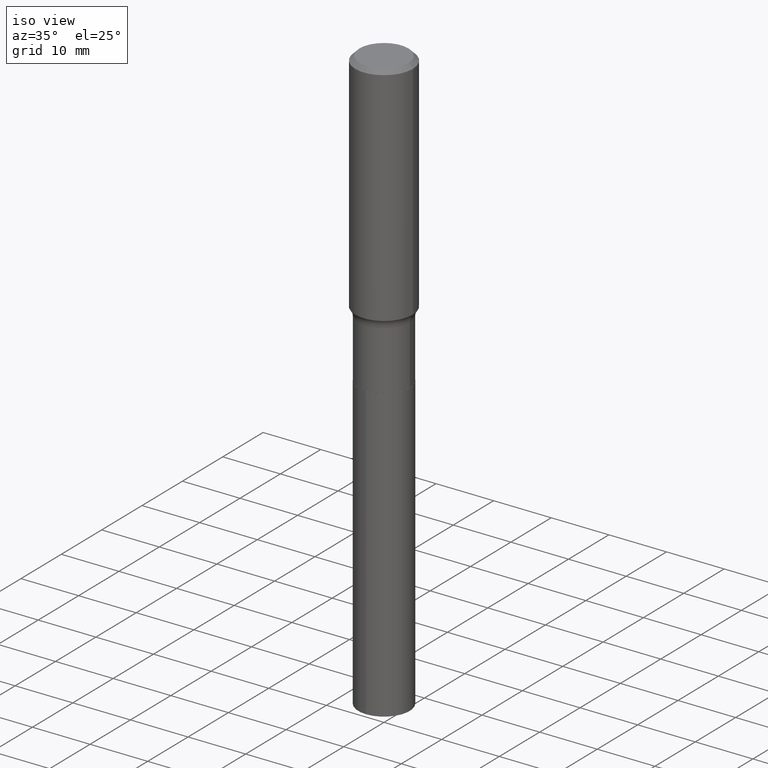
[diagram: clean part render]
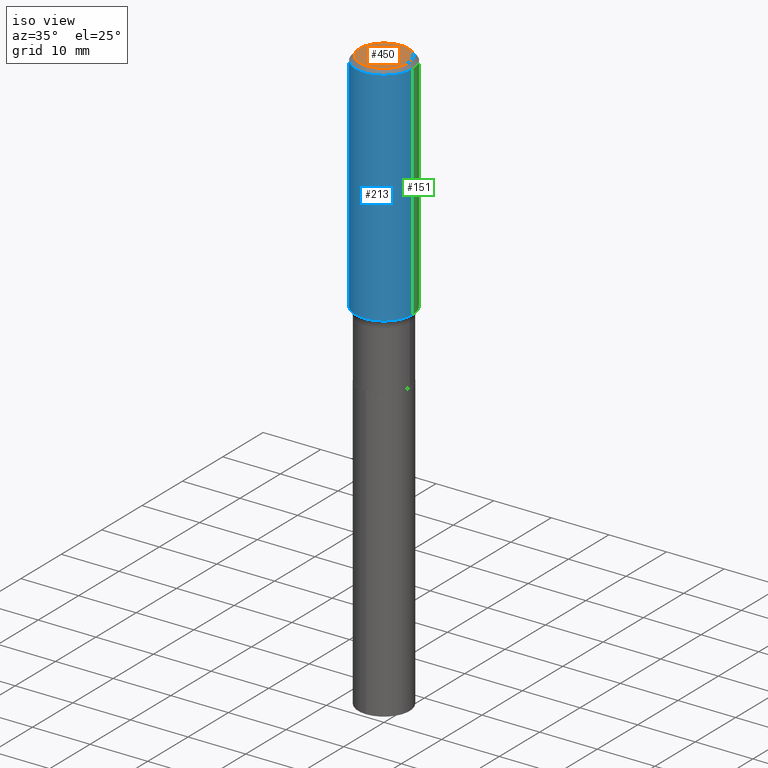
[diagram: same view with three faces highlighted in distinct colors, each labeled with its STEP entity id]
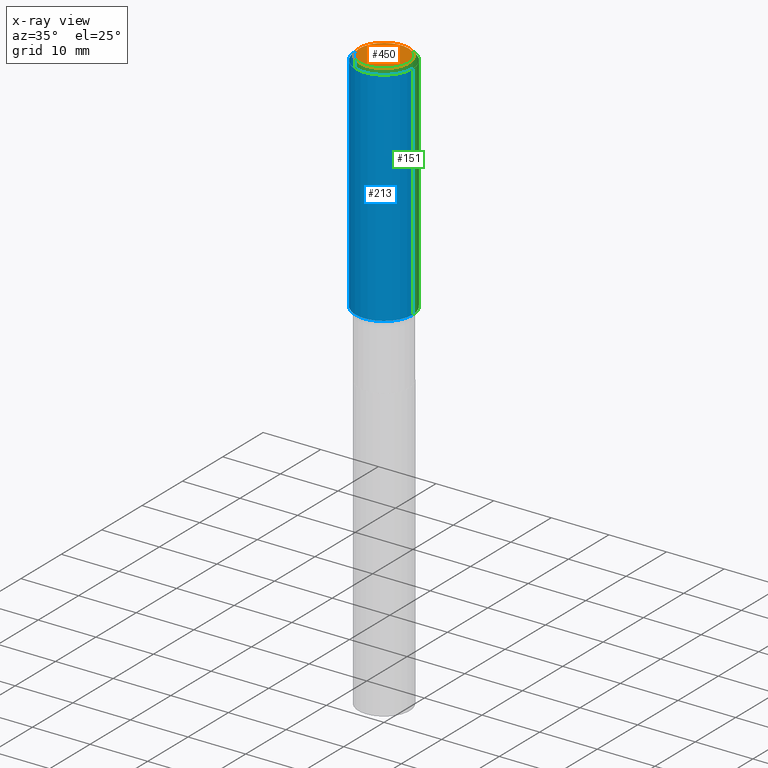
[diagram: x-ray of the same camera — body ghosted, the three highlighted faces saturated]
A machine part, iso view with three faces highlighted in distinct colors.
The next image is the same camera in x-ray (body ghosted, the three faces saturated) — at least one of them is partly hidden behind the body in this view.
Their STEP definitions:

[orange] entity #450 — the highlighted planar face has unit normal (0, -0, -1).
#3 = CARTESIAN_POINT ( 'NONE',  ( -1.001697619218021790E-46, 1.430158722866389718E-32, 4.096137381448108366E-18 ) ) ;
#47 = VERTEX_POINT ( 'NONE', #308 ) ;
#71 = DIRECTION ( 'NONE',  ( 2.438088387897960049E-29, -3.491481338843145188E-15, -1.000000000000000000 ) ) ;
#73 = CARTESIAN_POINT ( 'NONE',  ( -5.008488096090108951E-47, 7.150793614331948590E-33, 2.048068690724054183E-18 ) ) ;
#81 = CIRCLE ( 'NONE', #468, 0.1673224999999999851 ) ;
#107 = PLANE ( 'NONE',  #461 ) ;
#112 = ORIENTED_EDGE ( 'NONE', *, *, #414, .T. ) ;
#130 = EDGE_CURVE ( 'NONE', #421, #47, #278, .T. ) ;
#158 = ORIENTED_EDGE ( 'NONE', *, *, #130, .T. ) ;
#165 = CARTESIAN_POINT ( 'NONE',  ( -0.1673224999999999851, 1.219954130253505460E-15, 4.096137381439757534E-18 ) ) ;
#203 = EDGE_LOOP ( 'NONE', ( #158, #112 ) ) ;
#278 = CIRCLE ( 'NONE', #362, 0.1673224999999999851 ) ;
#286 = DIRECTION ( 'NONE',  ( 1.000000000000000000, -6.982962677686267499E-15, 4.876294436782262290E-29 ) ) ;
#308 = CARTESIAN_POINT ( 'NONE',  ( 0.1673224999999999851, -1.300749711163072594E-15, 4.096137381456741925E-18 ) ) ;
#313 = FACE_OUTER_BOUND ( 'NONE', #203, .T. ) ;
#334 = DIRECTION ( 'NONE',  ( 1.000000000000000000, -6.982962677686267499E-15, 4.876294436782262290E-29 ) ) ;
#349 = CARTESIAN_POINT ( 'NONE',  ( -1.001697619218021790E-46, 1.430158722866389718E-32, 4.096137381448108366E-18 ) ) ;
#362 = AXIS2_PLACEMENT_3D ( 'NONE', #3, #490, #334 ) ;
#382 = DIRECTION ( 'NONE',  ( -1.000000000000000000, 6.982962677686265922E-15, -4.876176775795935793E-29 ) ) ;
#414 = EDGE_CURVE ( 'NONE', #47, #421, #81, .T. ) ;
#421 = VERTEX_POINT ( 'NONE', #165 ) ;
#427 = DIRECTION ( 'NONE',  ( -2.445468806185136597E-29, 3.491481338843145583E-15, 1.000000000000000000 ) ) ;
#450 = ADVANCED_FACE ( 'NONE', ( #313 ), #107, .F. ) ;
#461 = AXIS2_PLACEMENT_3D ( 'NONE', #73, #71, #382 ) ;
#468 = AXIS2_PLACEMENT_3D ( 'NONE', #349, #427, #286 ) ;
#490 = DIRECTION ( 'NONE',  ( -2.445468806185136597E-29, 3.491481338843145583E-15, 1.000000000000000000 ) ) ;

[blue] entity #213 — the highlighted cylindrical surface (edge-blend (fillet) strip) has radius 5 mm, axis along (-0, 0, 1).
#8 = EDGE_LOOP ( 'NONE', ( #85, #20, #34, #431 ) ) ;
#13 = CARTESIAN_POINT ( 'NONE',  ( -0.1968500000000001915, -4.002505982180359837E-15, -1.546967843543948229 ) ) ;
#20 = ORIENTED_EDGE ( 'NONE', *, *, #371, .T. ) ;
#24 = CARTESIAN_POINT ( 'NONE',  ( 0.1968500000000000527, -1.477690918335233688E-15, -0.02952750000000022024 ) ) ;
#28 = VERTEX_POINT ( 'NONE', #194 ) ;
#34 = ORIENTED_EDGE ( 'NONE', *, *, #475, .T. ) ;
#36 = LINE ( 'NONE', #322, #38 ) ;
#38 = VECTOR ( 'NONE', #397, 39.37007874015748143 ) ;
#45 = LINE ( 'NONE', #314, #227 ) ;
#53 = VERTEX_POINT ( 'NONE', #13 ) ;
#66 = DIRECTION ( 'NONE',  ( -2.445468806185136597E-29, 3.491481338843145583E-15, 1.000000000000000000 ) ) ;
#85 = ORIENTED_EDGE ( 'NONE', *, *, #420, .F. ) ;
#108 = CARTESIAN_POINT ( 'NONE',  ( 7.220858017463216492E-31, -1.030947152326917595E-16, -0.02952750000000022024 ) ) ;
#118 = EDGE_CURVE ( 'NONE', #28, #482, #417, .T. ) ;
#134 = DIRECTION ( 'NONE',  ( -2.445468806185136597E-29, 3.491481338843145583E-15, 1.000000000000000000 ) ) ;
#168 = FACE_OUTER_BOUND ( 'NONE', #8, .T. ) ;
#194 = CARTESIAN_POINT ( 'NONE',  ( -0.1968500000000000527, -1.353448661034646867E-15, -0.02952750000000022024 ) ) ;
#213 = ADVANCED_FACE ( 'NONE', ( #168 ), #485, .T. ) ;
#222 = DIRECTION ( 'NONE',  ( 1.000000000000000000, -6.982962677686266711E-15, 4.876176775795935793E-29 ) ) ;
#227 = VECTOR ( 'NONE', #364, 39.37007874015748143 ) ;
#289 = CIRCLE ( 'NONE', #301, 0.1968500000000001915 ) ;
#292 = DIRECTION ( 'NONE',  ( 1.000000000000000000, -6.982962677686266711E-15, 0.000000000000000000 ) ) ;
#300 = AXIS2_PLACEMENT_3D ( 'NONE', #108, #422, #384 ) ;
#301 = AXIS2_PLACEMENT_3D ( 'NONE', #487, #134, #292 ) ;
#303 = VERTEX_POINT ( 'NONE', #335 ) ;
#314 = CARTESIAN_POINT ( 'NONE',  ( -0.1968500000000001082, 1.398703375343757985E-15, -9.682923725166787881E-30 ) ) ;
#322 = CARTESIAN_POINT ( 'NONE',  ( 0.1968500000000001082, -1.374596203102542397E-15, 9.598753983154305062E-30 ) ) ;
#331 = CARTESIAN_POINT ( 'NONE',  ( 0.000000000000000000, 0.000000000000000000, 0.000000000000000000 ) ) ;
#335 = CARTESIAN_POINT ( 'NONE',  ( 0.1968500000000001915, -6.775805560626661599E-15, -1.546967843543948229 ) ) ;
#364 = DIRECTION ( 'NONE',  ( -2.445468806185136877E-29, 3.491481338843145188E-15, 1.000000000000000000 ) ) ;
#371 = EDGE_CURVE ( 'NONE', #53, #303, #289, .T. ) ;
#384 = DIRECTION ( 'NONE',  ( 1.000000000000000000, -6.982962677686266711E-15, 0.000000000000000000 ) ) ;
#397 = DIRECTION ( 'NONE',  ( -2.445468806185136877E-29, 3.491481338843145188E-15, 1.000000000000000000 ) ) ;
#417 = CIRCLE ( 'NONE', #300, 0.1968500000000000527 ) ;
#420 = EDGE_CURVE ( 'NONE', #53, #28, #45, .T. ) ;
#422 = DIRECTION ( 'NONE',  ( -2.445468806185136597E-29, 3.491481338843145583E-15, 1.000000000000000000 ) ) ;
#423 = AXIS2_PLACEMENT_3D ( 'NONE', #331, #66, #222 ) ;
#431 = ORIENTED_EDGE ( 'NONE', *, *, #118, .F. ) ;
#475 = EDGE_CURVE ( 'NONE', #303, #482, #36, .T. ) ;
#482 = VERTEX_POINT ( 'NONE', #24 ) ;
#485 = CYLINDRICAL_SURFACE ( 'NONE', #423, 0.1968500000000001082 ) ;
#487 = CARTESIAN_POINT ( 'NONE',  ( 3.783061605558214403E-29, -5.401209357524118413E-15, -1.546967843543948229 ) ) ;

[green] entity #151 — the highlighted cylindrical surface (edge-blend (fillet) strip) has radius 5 mm, axis along (-0, 0, 1).
#13 = CARTESIAN_POINT ( 'NONE',  ( -0.1968500000000001915, -4.002505982180359837E-15, -1.546967843543948229 ) ) ;
#24 = CARTESIAN_POINT ( 'NONE',  ( 0.1968500000000000527, -1.477690918335233688E-15, -0.02952750000000022024 ) ) ;
#28 = VERTEX_POINT ( 'NONE', #194 ) ;
#36 = LINE ( 'NONE', #322, #38 ) ;
#38 = VECTOR ( 'NONE', #397, 39.37007874015748143 ) ;
#44 = EDGE_LOOP ( 'NONE', ( #419, #306, #263, #323 ) ) ;
#45 = LINE ( 'NONE', #314, #227 ) ;
#49 = CIRCLE ( 'NONE', #74, 0.1968500000000000527 ) ;
#53 = VERTEX_POINT ( 'NONE', #13 ) ;
#74 = AXIS2_PLACEMENT_3D ( 'NONE', #358, #159, #320 ) ;
#103 = CIRCLE ( 'NONE', #210, 0.1968500000000001915 ) ;
#115 = DIRECTION ( 'NONE',  ( 1.000000000000000000, -6.982962677686266711E-15, 0.000000000000000000 ) ) ;
#123 = FACE_OUTER_BOUND ( 'NONE', #44, .T. ) ;
#150 = CARTESIAN_POINT ( 'NONE',  ( 3.783061605558214403E-29, -5.401209357524118413E-15, -1.546967843543948229 ) ) ;
#151 = ADVANCED_FACE ( 'NONE', ( #123 ), #356, .T. ) ;
#159 = DIRECTION ( 'NONE',  ( -2.445468806185136597E-29, 3.491481338843145583E-15, 1.000000000000000000 ) ) ;
#169 = EDGE_CURVE ( 'NONE', #482, #28, #49, .T. ) ;
#194 = CARTESIAN_POINT ( 'NONE',  ( -0.1968500000000000527, -1.353448661034646867E-15, -0.02952750000000022024 ) ) ;
#204 = DIRECTION ( 'NONE',  ( 1.000000000000000000, -6.982962677686266711E-15, 4.876176775795935793E-29 ) ) ;
#210 = AXIS2_PLACEMENT_3D ( 'NONE', #150, #310, #115 ) ;
#227 = VECTOR ( 'NONE', #364, 39.37007874015748143 ) ;
#263 = ORIENTED_EDGE ( 'NONE', *, *, #169, .F. ) ;
#279 = CARTESIAN_POINT ( 'NONE',  ( 0.000000000000000000, 0.000000000000000000, 0.000000000000000000 ) ) ;
#303 = VERTEX_POINT ( 'NONE', #335 ) ;
#306 = ORIENTED_EDGE ( 'NONE', *, *, #420, .T. ) ;
#310 = DIRECTION ( 'NONE',  ( -2.445468806185136597E-29, 3.491481338843145583E-15, 1.000000000000000000 ) ) ;
#314 = CARTESIAN_POINT ( 'NONE',  ( -0.1968500000000001082, 1.398703375343757985E-15, -9.682923725166787881E-30 ) ) ;
#320 = DIRECTION ( 'NONE',  ( 1.000000000000000000, -6.982962677686266711E-15, 0.000000000000000000 ) ) ;
#322 = CARTESIAN_POINT ( 'NONE',  ( 0.1968500000000001082, -1.374596203102542397E-15, 9.598753983154305062E-30 ) ) ;
#323 = ORIENTED_EDGE ( 'NONE', *, *, #475, .F. ) ;
#335 = CARTESIAN_POINT ( 'NONE',  ( 0.1968500000000001915, -6.775805560626661599E-15, -1.546967843543948229 ) ) ;
#356 = CYLINDRICAL_SURFACE ( 'NONE', #381, 0.1968500000000001082 ) ;
#358 = CARTESIAN_POINT ( 'NONE',  ( 7.220858017463216492E-31, -1.030947152326917595E-16, -0.02952750000000022024 ) ) ;
#364 = DIRECTION ( 'NONE',  ( -2.445468806185136877E-29, 3.491481338843145188E-15, 1.000000000000000000 ) ) ;
#381 = AXIS2_PLACEMENT_3D ( 'NONE', #279, #396, #204 ) ;
#396 = DIRECTION ( 'NONE',  ( -2.445468806185136597E-29, 3.491481338843145583E-15, 1.000000000000000000 ) ) ;
#397 = DIRECTION ( 'NONE',  ( -2.445468806185136877E-29, 3.491481338843145188E-15, 1.000000000000000000 ) ) ;
#419 = ORIENTED_EDGE ( 'NONE', *, *, #447, .T. ) ;
#420 = EDGE_CURVE ( 'NONE', #53, #28, #45, .T. ) ;
#447 = EDGE_CURVE ( 'NONE', #303, #53, #103, .T. ) ;
#475 = EDGE_CURVE ( 'NONE', #303, #482, #36, .T. ) ;
#482 = VERTEX_POINT ( 'NONE', #24 ) ;